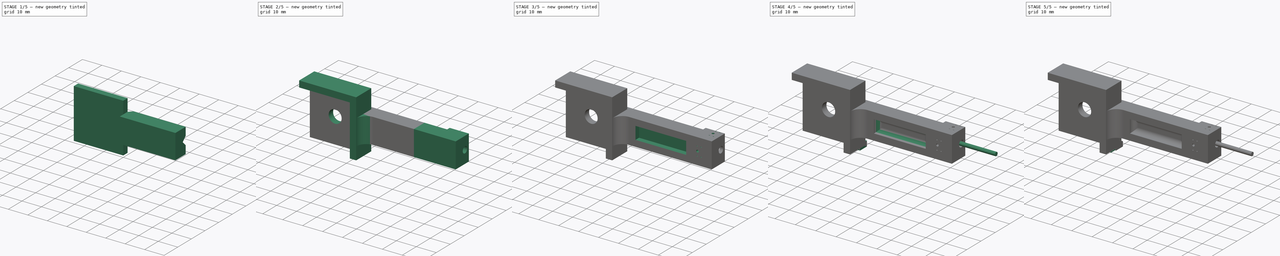
[diagram: build sequence overview — one tinted view per stage of 5, left to right]
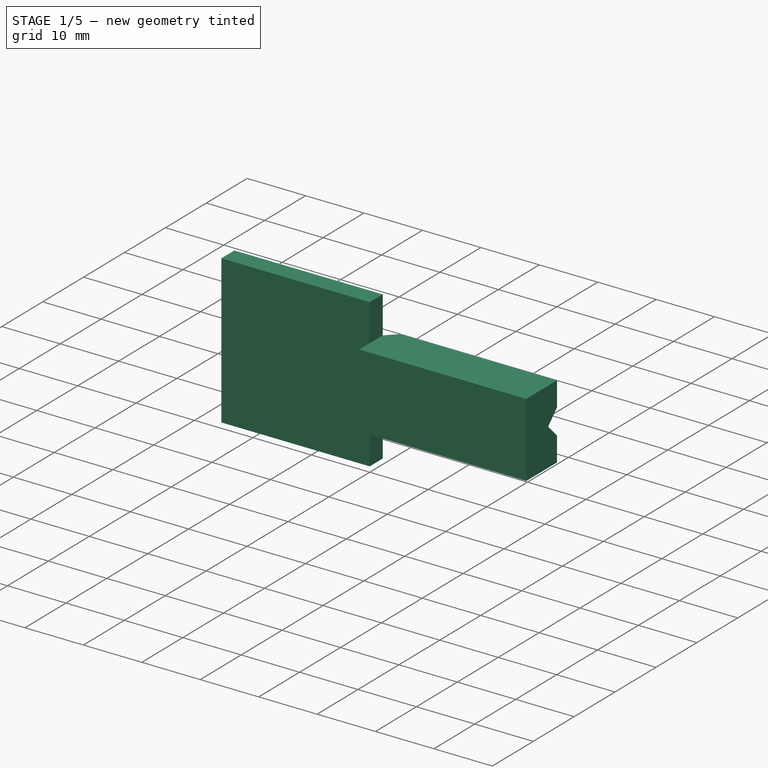
[diagram: stage 1 of 5 — iso view after this stage's code; geometry added in this stage tinted green]
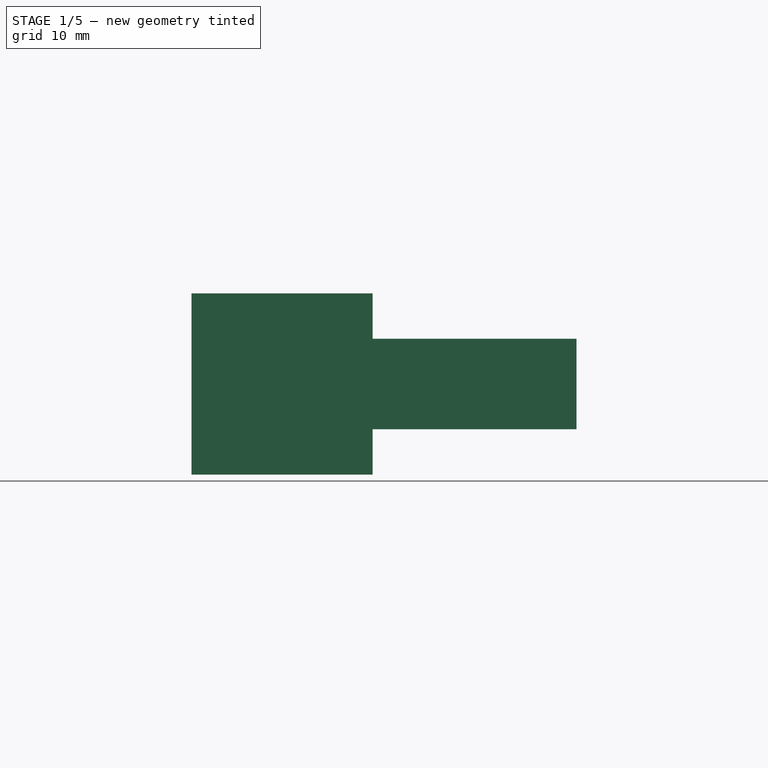
[diagram: stage 1 of 5 — front view after this stage's code; geometry added in this stage tinted green]
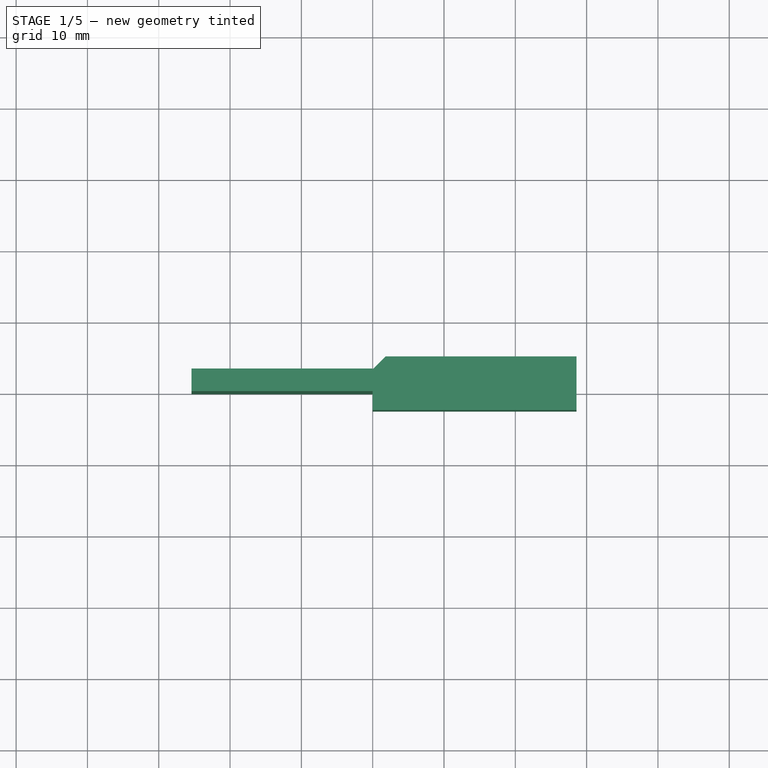
[diagram: stage 1 of 5 — top view after this stage's code; geometry added in this stage tinted green]
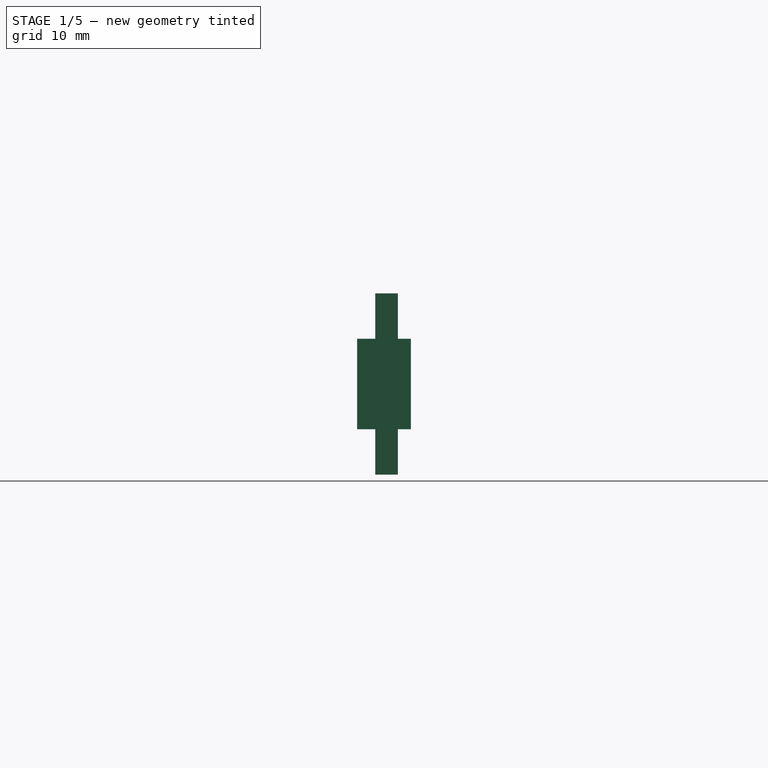
[diagram: stage 1 of 5 — right view after this stage's code; geometry added in this stage tinted green]
FCSTD DOCUMENT  (FreeCAD 0.18R16110 (Git))
Label: Lick spout holder with photointerrupt
License: All rights reserved
LicenseURL: http://en.wikipedia.org/wiki/All_rights_reserved
objects: Sketcher::SketchObject×20, PartDesign::Pad×9, PartDesign::Pocket×9, PartDesign::Chamfer×5, PartDesign::Body×3, PartDesign::Fillet×2, Part::Feature×2, Part::Part2DObjectPython×1, Spreadsheet::Sheet×1, PartDesign::SubtractiveLoft×1
note: 71 computed .brp shape members not serialized (recipe doc carries the construction recipe); baked Part::Feature solids carry a one-line shape summary decoded from their .brp

FEATURE [Sketcher::SketchObject] Sketch  label="Mounting platform"
  MapMode = 5
  Support = -> [XY_Plane]
  sketch-geometry (4):
    g0: LineSegment StartX=-25.4 StartY=3.175 StartZ=0 EndX=0 EndY=3.175 EndZ=0
    g1: LineSegment StartX=0 StartY=3.175 StartZ=0 EndX=0 EndY=0 EndZ=0
    g2: LineSegment StartX=0 StartY=0 StartZ=0 EndX=-25.4 EndY=0 EndZ=0
    g3: LineSegment StartX=-25.4 StartY=0 StartZ=0 EndX=-25.4 EndY=3.175 EndZ=0
  constraints (11):
    c: Coincident(g0,g1)
    c: Coincident(g1,g2)
    c: Coincident(g2,g3)
    c: Coincident(g3,g0)
    c: Horizontal(g0)
    c: Horizontal(g2)
    c: Vertical(g1)
    c: Vertical(g3)
    c: DistanceX(g2,g2) = 25.4
    c: DistanceY(g1,g1) = 3.175
    c: Coincident(g-1,g1)
FEATURE [PartDesign::Pad] Pad
  Length = 25.4
  Length2 = 99.9998
  Profile = -> Sketch
  Type = 0
FEATURE [Sketcher::SketchObject] Sketch001  label="Spout support platform"
  MapMode = 5
  Placement = pos=(0,3.175,0) rot=(0,0.707107,0.707107;3.14159rad)
  Support = -> [Pad]
  expr: Constraints[11] = 1.5in - 0.375in
  expr: Constraints[8] = (1in - 0.5in) / 2
  sketch-geometry (4):
    g0: LineSegment StartX=-28.575 StartY=19.05 StartZ=0 EndX=0 EndY=19.05 EndZ=0
    g1: LineSegment StartX=0 StartY=19.05 StartZ=0 EndX=0 EndY=6.35 EndZ=0
    g2: LineSegment StartX=0 StartY=6.35 StartZ=0 EndX=-28.575 EndY=6.35 EndZ=0
    g3: LineSegment StartX=-28.575 StartY=6.35 StartZ=0 EndX=-28.575 EndY=19.05 EndZ=0
  constraints (12):
    c: Coincident(g0,g1)
    c: Coincident(g1,g2)
    c: Coincident(g2,g3)
    c: Coincident(g3,g0)
    c: Horizontal(g0)
    c: Horizontal(g2)
    c: Vertical(g1)
    c: Vertical(g3)
    c: DistanceY(g-1,g1) = 6.35
    c: DistanceY(g1,g1) = 12.7
    c: DistanceX(g1,g-1) = 0
    c: DistanceX(g2,g2) = 28.575
FEATURE [PartDesign::Pad] Pad001
  BaseFeature = -> Pad
  Length = 1.81
  Length2 = 5.715
  Profile = -> Sketch001
  Type = 4
  expr: Length = 1.81mm
FEATURE [Sketcher::SketchObject] Sketch002  label="Spout groove"
  MapMode = 5
  Placement = pos=(28.575,0,0) rot=(0.57735,0.57735,0.57735;2.0944rad)
  Support = -> [Pad001]
  expr: Constraints[7] = 0.125" + 1.81mm / 2
  expr: Constraints[3] = 1.81mm / 2
  sketch-geometry (4):
    g0: LineSegment StartX=9.15014 StartY=19.05 StartZ=0 EndX=2.80014 EndY=12.7 EndZ=0
    g1: LineSegment StartX=2.80014 StartY=12.7 StartZ=0 EndX=9.15014 EndY=6.35 EndZ=0
    g2: LineSegment StartX=9.15014 StartY=6.35 StartZ=0 EndX=9.15014 EndY=19.05 EndZ=0
    g3: Circle [constr] CenterX=4.08 CenterY=12.7 CenterZ=0 NormalX=0 NormalY=0 NormalZ=1 AngleXU=0 Radius=0.905
  constraints (12):
    c: Coincident(g0,g2)
    c: Coincident(g0,g1)
    c: Coincident(g1,g2)
    c: Radius(g3) = 0.905
    c: Tangent(g1,g3)
    c: Tangent(g3,g0)
    c: DistanceX(g1,g0) = 0
    c: DistanceX(g-1,g3) = 4.08
    c: DistanceY(g-1,g0) = 12.7
    c: Equal(g0,g1)
    c: Angle(g1,g0) = 1.5708
    c: DistanceX(g0,g1) = 6.35
FEATURE [PartDesign::Pocket] Pocket
  BaseFeature = -> Pad001
  Length = 9.525
  Length2 = 99.9998
  Profile = -> Sketch002
  Type = 0
  expr: Length = 3in / 8
FEATURE [Sketcher::SketchObject] Sketch003  label="Tube groove"
  MapMode = 5
  Placement = pos=(19.05,0,0) rot=(0.57735,0.57735,0.57735;2.0944rad)
  Support = -> [Pocket]
  expr: Constraints[12] = 1.81mm / 2
  expr: Constraints[4] = 0.125" + 1.81mm / 2
  expr: Constraints[2] = 0.16" / 2
  sketch-geometry (4):
    g0: ArcOfCircle CenterX=4.08 CenterY=12.7 CenterZ=0 NormalX=0 NormalY=0 NormalZ=1 AngleXU=0 Radius=2.032 StartAngle=1.5708 EndAngle=4.71239
    g1: LineSegment StartX=4.08 StartY=14.732 StartZ=0 EndX=4.985 EndY=14.732 EndZ=0
    g2: LineSegment StartX=4.985 StartY=14.732 StartZ=0 EndX=4.985 EndY=10.668 EndZ=0
    g3: LineSegment StartX=4.985 StartY=10.668 StartZ=0 EndX=4.08 EndY=10.668 EndZ=0
  constraints (13):
    c: DistanceX(g0,g0) = 0
    c: DistanceX(g0,g0) = 0
    c: Radius(g0) = 2.032
    c: DistanceY(g-1,g0) = 12.7
    c: DistanceX(g-1,g0) = 4.08
    c: Coincident(g0,g1)
    c: Coincident(g1,g2)
    c: Coincident(g2,g3)
    c: Coincident(g0,g3)
    c: Horizontal(g3)
    c: Horizontal(g1)
    c: Vertical(g2)
    c: Distance(g1) = 0.905
FEATURE [PartDesign::Pocket] Pocket001
  BaseFeature = -> Pocket
  Length = 12.7
  Length2 = 99.9998
  Profile = -> Sketch003
  Type = 0
FEATURE [PartDesign::Chamfer] Chamfer
  Base = -> Pocket001 [Edge14]
  BaseFeature = -> Pocket001
  Size = 1.8034
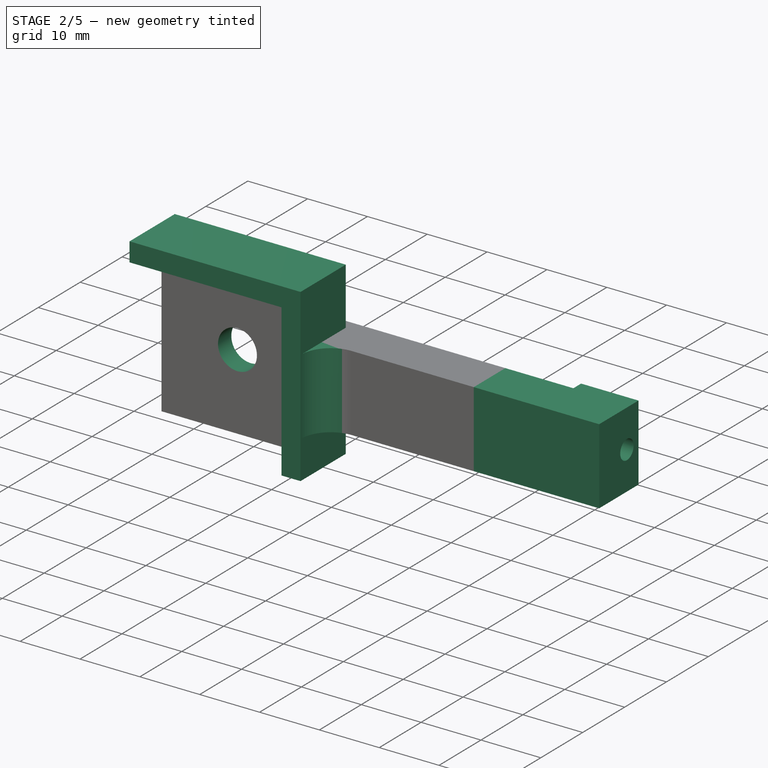
[diagram: stage 2 of 5 — iso view after this stage's code; geometry added in this stage tinted green]
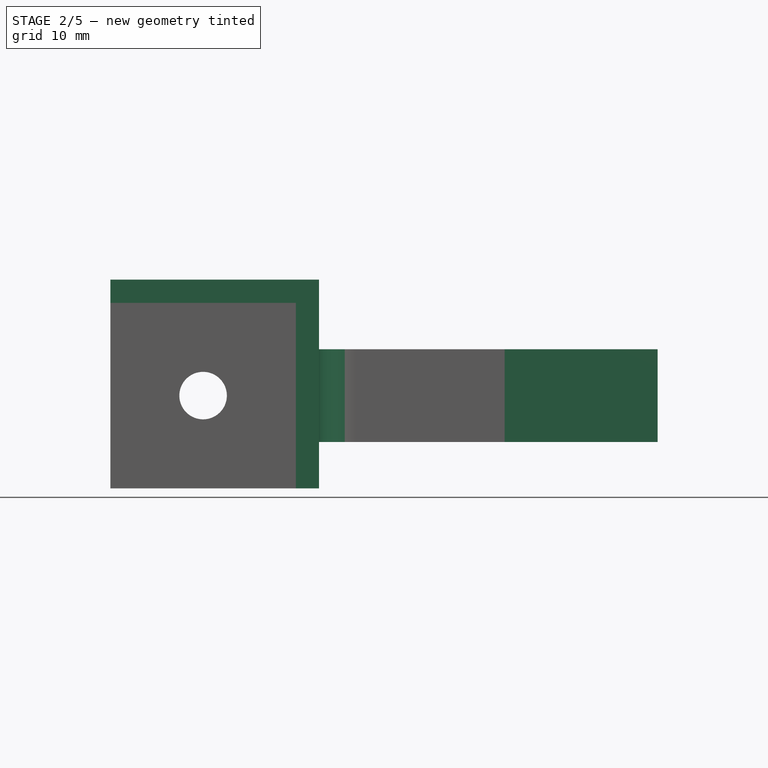
[diagram: stage 2 of 5 — front view after this stage's code; geometry added in this stage tinted green]
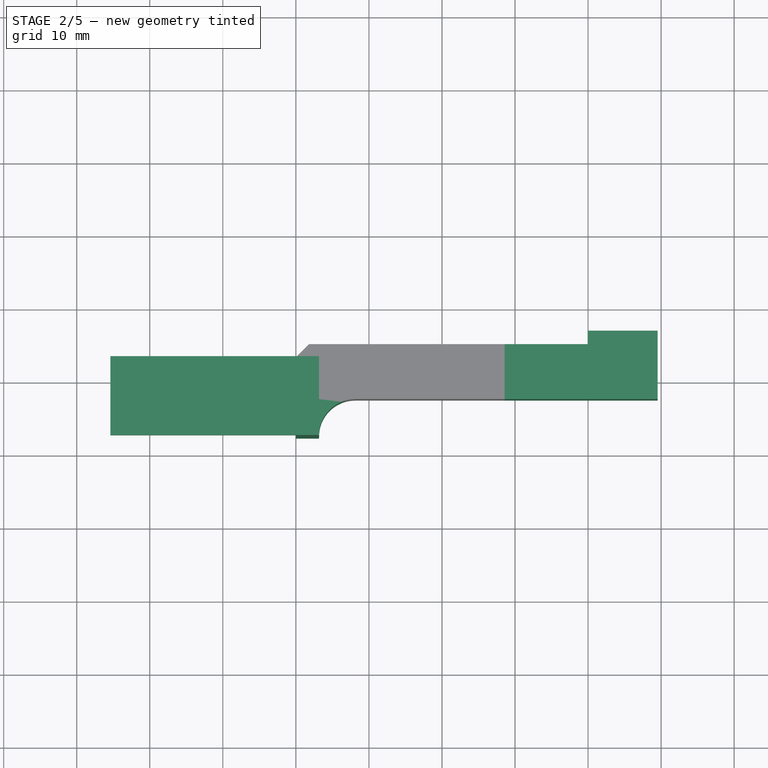
[diagram: stage 2 of 5 — top view after this stage's code; geometry added in this stage tinted green]
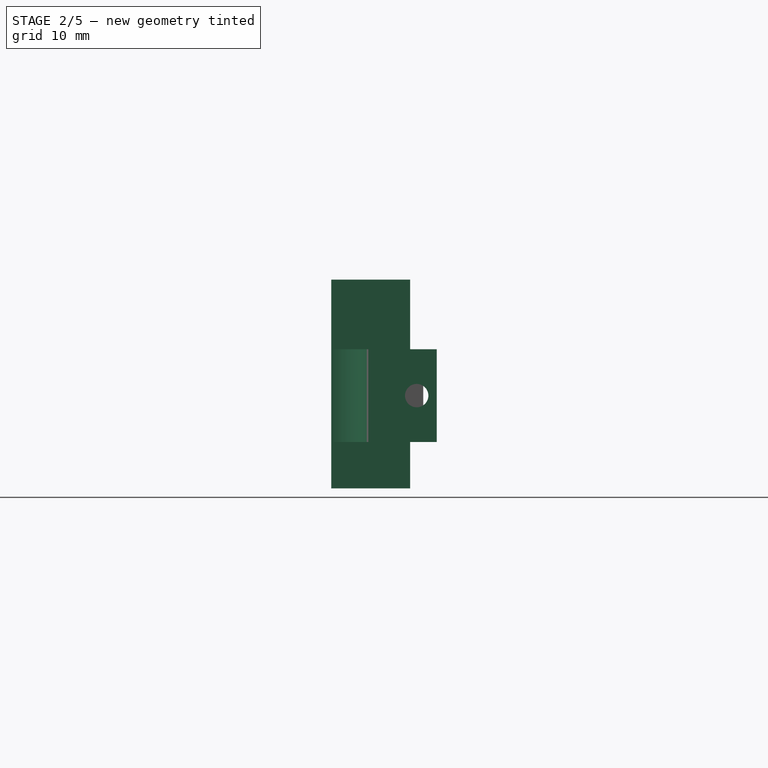
[diagram: stage 2 of 5 — right view after this stage's code; geometry added in this stage tinted green]
FEATURE [Sketcher::SketchObject] Sketch004  label="Mounting hole"
  MapMode = 5
  Placement = pos=(0,3.175,0) rot=(0,0.707107,0.707107;3.14159rad)
  Support = -> [Chamfer]
  expr: Constraints[2] = 0.25in / 2 + 0.003in
  sketch-geometry (1):
    g0: Circle CenterX=12.7 CenterY=12.7 CenterZ=0 NormalX=0 NormalY=0 NormalZ=1 AngleXU=0 Radius=3.2512
  constraints (3):
    c: DistanceX(g-1,g0) = 12.7
    c: DistanceY(g-1,g0) = 12.7
    c: Radius(g0) = 3.2512
FEATURE [PartDesign::Pocket] Pocket002
  BaseFeature = -> Chamfer
  Length = 5.00126
  Length2 = 99.9998
  Profile = -> Sketch004
  Type = 1
FEATURE [Sketcher::SketchObject] Sketch006  label="Orienting lip"
  MapMode = 5
  Placement = pos=(0,3.175,0) rot=(0,0.707107,0.707107;3.14159rad)
  Support = -> [Pocket002]
  sketch-geometry (6):
    g0: LineSegment StartX=0 StartY=0 StartZ=0 EndX=-3.175 EndY=0 EndZ=0
    g1: LineSegment StartX=-3.175 StartY=0 StartZ=0 EndX=-3.175 EndY=28.575 EndZ=0
    g2: LineSegment StartX=-3.175 StartY=28.575 StartZ=0 EndX=25.4 EndY=28.575 EndZ=0
    g3: LineSegment StartX=25.4 StartY=28.575 StartZ=0 EndX=25.4 EndY=25.4 EndZ=0
    g4: LineSegment StartX=25.4 StartY=25.4 StartZ=0 EndX=0 EndY=25.4 EndZ=0
    g5: LineSegment StartX=0 StartY=25.4 StartZ=0 EndX=0 EndY=0 EndZ=0
  constraints (17):
    c: Coincident(g0,g1)
    c: Coincident(g1,g2)
    c: Coincident(g2,g3)
    c: Coincident(g3,g4)
    c: Coincident(g4,g5)
    c: Coincident(g0,g5)
    c: Coincident(g0,g-1)
    c: Horizontal(g0)
    c: Horizontal(g4)
    c: Horizontal(g2)
    c: Vertical(g1)
    c: Vertical(g5)
    c: Vertical(g3)
    c: DistanceY(g4) = 25.4
    c: DistanceX(g3) = 25.4
    c: DistanceX(g1,g4) = 3.175
    c: DistanceY(g4,g1) = 3.175
FEATURE [PartDesign::Pad] Pad002
  BaseFeature = -> Pocket002
  Length = 10.795
  Length2 = 99.9998
  Profile = -> Sketch006
  Reversed = true
  Type = 0
FEATURE [PartDesign::Fillet] Fillet
  Base = -> Pad002 [Edge26]
  BaseFeature = -> Pad002
  Radius = 4.953
FEATURE [PartDesign::Body] Body002  label="Spout001"
  Group = -> [Sketch011,Pad007]
  Origin = -> Origin002
  Tip = -> Pad007
FEATURE [Part::Feature] Body001001  label="Photointerrupt001"
  Placement = pos=(43.1505,-0.885161,12.6997) rot=(0,1,0;4.71239rad)
  shape: bbox 2.6 x 7.9 x 5.5 mm, 45 faces (baked)
  expr: Placement.Base.x = 1.5354" + 0.25" - 1.463thou - 0.125in + 0.1649in - 0.125" + ss.piDelta
  expr: Placement.Base.y = -22.7734thou - 5.603thou - 0.07199999999999999" / 2 + 0.75mm
  expr: Placement.Base.z = 0.5118" - 11.8113thou
FEATURE [Part::Feature] Body001002  label="Photointerrupt002"
  Placement = pos=(46.3245,4.0805,7.7356) rot=(0.57735,-0.57735,-0.57735;2.0944rad)
  shape: bbox 2.6 x 5.5 x 7.9 mm, 45 faces (baked)
  expr: Placement.Base.z = 0.3543" - 37.7043thou - 5.5721thou - 0.07199999999999999" / 2 + 0.75mm
  expr: Placement.Base.x = 1.8238" + ss.piDelta
  expr: Placement.Base.y = 0.1969" - 36.2505thou
FEATURE [Sketcher::SketchObject] Sketch012
  ExternalGeometry = -> [Fillet]
  MapMode = 5
  Placement = pos=(28.575,0,0) rot=(0.57735,0.57735,0.57735;2.0944rad)
  Support = -> [Fillet]
  expr: Constraints[30] = 5.5mm + 2 * ss.piTol
  expr: Constraints[32] = 4.8mm - 0.75mm + 0.07199999999999999" / 2 + ss.piTol
  expr: Constraints[29] = 4.8mm - 0.75mm + 0.07199999999999999" / 2 - 5.5mm / 2
  expr: Constraints[17] = 0.2246" - (4.8mm - 0.75mm) - ss.piTol
  expr: Constraints[15] = 0.225" + 1.81mm
  sketch-geometry (13):
    g0: LineSegment [constr] StartX=-25.4 StartY=12.7 StartZ=0 EndX=25.4 EndY=12.7 EndZ=0
    g1: LineSegment StartX=4.985 StartY=19.05 StartZ=0 EndX=-2.54 EndY=19.05 EndZ=0
    g2: LineSegment StartX=-2.54 StartY=19.05 StartZ=0 EndX=-2.54 EndY=6.35 EndZ=0
    g3: LineSegment StartX=-2.54 StartY=6.35 StartZ=0 EndX=4.985 EndY=6.35 EndZ=0
    g4: LineSegment StartX=4.985 StartY=6.35 StartZ=0 EndX=4.985 EndY=7.5106 EndZ=0
    g5: LineSegment StartX=4.985 StartY=7.5106 StartZ=0 EndX=1.10424 EndY=7.5106 EndZ=0
    g6: LineSegment StartX=-1.11016 StartY=9.725 StartZ=0 EndX=-1.11016 EndY=15.675 EndZ=0
    g7: LineSegment StartX=1.10424 StartY=17.8894 StartZ=0 EndX=4.985 EndY=17.8894 EndZ=0
    g8: LineSegment StartX=4.985 StartY=17.8894 StartZ=0 EndX=4.985 EndY=19.05 EndZ=0
    g9: LineSegment StartX=-1.11016 StartY=15.675 StartZ=0 EndX=1.10424 EndY=15.675 EndZ=0
    g10: LineSegment StartX=1.10424 StartY=15.675 StartZ=0 EndX=1.10424 EndY=17.8894 EndZ=0
    g11: LineSegment StartX=-1.11016 StartY=9.725 StartZ=0 EndX=1.10424 EndY=9.725 EndZ=0
    g12: LineSegment StartX=1.10424 StartY=9.725 StartZ=0 EndX=1.10424 EndY=7.5106 EndZ=0
  constraints (33):
    c: Horizontal(g0)
    c: DistanceX(g0) = -25.4
    c: DistanceX(g0) = 25.4
    c: DistanceY(g0) = 12.7
    c: Coincident(g2,g3)
    c: Coincident(g3,g4)
    c: Coincident(g4,g5)
    c: Coincident(g7,g8)
    c: Coincident(g1,g8)
    c: Symmetric(g2,g1,g0)
    c: Symmetric(g7,g4,g0)
    c: Symmetric(g1,g3,g0)
    c: Vertical(g8)
    c: Horizontal(g1)
    c: Horizontal(g7)
    c: DistanceX(g1,g1) = 7.525
    c: Coincident(g1,g-3)
    c: DistanceX(g1,g6) = 1.42984
    c: Coincident(g9,g10)
    c: Coincident(g11,g12)
    c: Coincident(g6,g11)
    c: Coincident(g5,g12)
    c: Coincident(g6,g9)
    c: Coincident(g7,g10)
    c: Symmetric(g11,g9,g0)
    c: Symmetric(g6,g6,g0)
    c: Symmetric(g7,g5,g0)
    c: Vertical(g10)
    c: Horizontal(g9)
    c: DistanceX(g9,g9) = 2.2144
    c: DistanceY(g6,g6) = 5.95
    c: Coincident(g1,g2)
    c: DistanceY(g4,g0) = 5.1894
FEATURE [Part::Part2DObjectPython] Line  label="Spout axis"  # Draft 2D object (typed FeaturePython)
  ChamferSize = 0
  Closed = false
  End = (13.335,4.07924,12.7)
  FilletRadius = 0
  Length = 53.34
  MakeFace = true
  Placement = pos=(66.675,4.07924,12.7) rot=(0.57735,0.57735,0.57735;2.0944rad)
  Points = (2) [(0,0,0),(2.66454e-14,-2.66454e-14,-53.34)]
  Start = (66.675,4.07924,12.7)
  Subdivisions = 0
FEATURE [Spreadsheet::Sheet] Spreadsheet  label="ss"
  cells = A1=PI fit tolerance:; B1(piTol)==0.225mm; A2=Spout hole; B2(shole)==1.75 * 0.07199999999999999" / 2; A3=PI position adjustment; B3(piDelta)==0mm; A4=Alignment hole radius; B4(alignHole)==1mm / 2 + ss.piTol / 2
FEATURE [Sketcher::SketchObject] Sketch013  label="PI support extension"
  ExternalGeometry = -> [Fillet]
  MapMode = 5
  Placement = pos=(28.575,0,0) rot=(0.57735,0.57735,0.57735;2.0944rad)
  Support = -> [Fillet]
  expr: Constraints[18] = 5.5mm / 2
  expr: Constraints[2] = 0.125" + 1.81mm / 2
  expr: Constraints[1] = ss.shole
  sketch-geometry (7):
    g0: Circle CenterX=4.08 CenterY=12.7 CenterZ=0 NormalX=0 NormalY=0 NormalZ=1 AngleXU=0 Radius=1.6002
    g1: LineSegment StartX=-2.54 StartY=19.05 StartZ=0 EndX=6.83 EndY=19.05 EndZ=0
    g2: LineSegment StartX=6.83 StartY=19.05 StartZ=0 EndX=6.83 EndY=6.35 EndZ=0
    g3: LineSegment StartX=6.83 StartY=6.35 StartZ=0 EndX=-2.54 EndY=6.35 EndZ=0
    g4: LineSegment StartX=-2.54 StartY=6.35 StartZ=0 EndX=-2.54 EndY=19.05 EndZ=0
    g5: LineSegment [constr] StartX=-21.32 StartY=12.7 StartZ=0 EndX=29.48 EndY=12.7 EndZ=0
    g6: LineSegment [constr] StartX=4.08 StartY=38.1 StartZ=0 EndX=4.08 EndY=-12.7 EndZ=0
  constraints (20):
    c: DistanceY(g0) = 12.7
    c: Radius(g0) = 1.6002
    c: DistanceX(g0) = 4.08
    c: Coincident(g1,g2)
    c: Coincident(g2,g3)
    c: Coincident(g3,g4)
    c: Coincident(g4,g1)
    c: Horizontal(g1)
    c: Horizontal(g3)
    c: Vertical(g2)
    c: PointOnObject(g0,g6)
    c: PointOnObject(g0,g5)
    c: Horizontal(g5)
    c: Symmetric(g6,g6,g5)
    c: Symmetric(g5,g5,g6)
    c: Distance(g6) = 50.8
    c: Symmetric(g1,g3,g5)
    c: Coincident(g3,g-3)
    c: DistanceX(g0,g1) = 2.75
    c: Equal(g6,g5)
FEATURE [PartDesign::Pad] Pad008
  BaseFeature = -> Fillet
  Length = 20.955
  Length2 = 99.9998
  Profile = -> Sketch013
  Type = 0
  expr: Length = 0.825" + ss.piDelta
FEATURE [PartDesign::Pocket] Pocket003
  BaseFeature = -> Pad008
  Length = 11.3711
  Length2 = 99.9998
  Profile = -> Pad008 [Face13]
  Type = 0
  expr: Length = 0.25" + 0.2727" - 75.0189thou + ss.piDelta
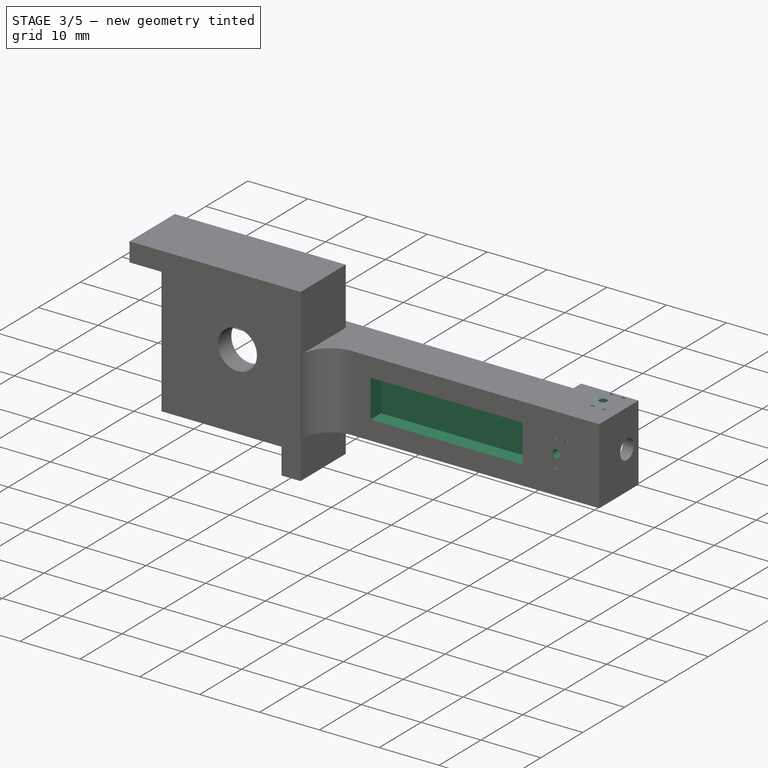
[diagram: stage 3 of 5 — iso view after this stage's code; geometry added in this stage tinted green]
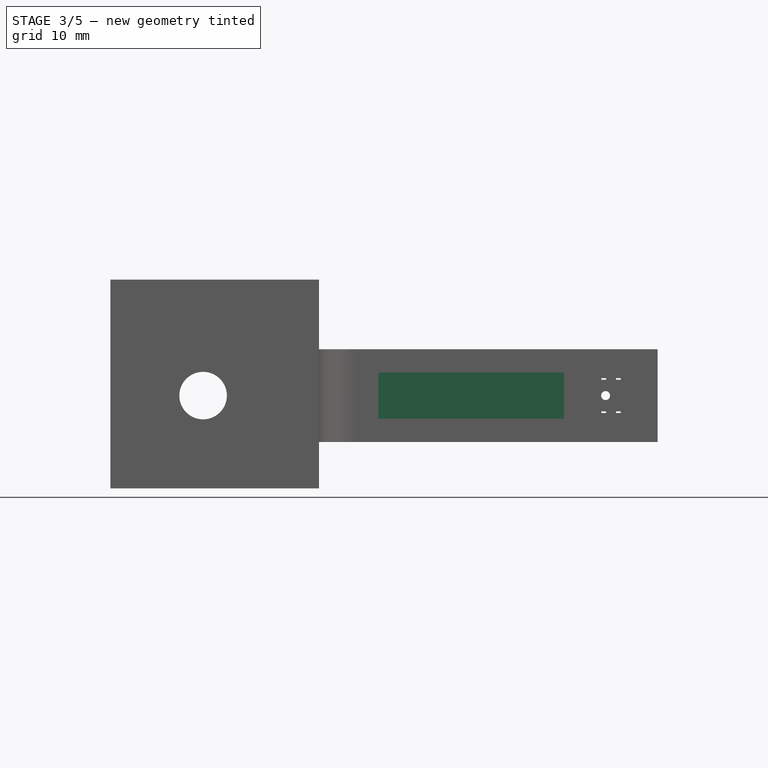
[diagram: stage 3 of 5 — front view after this stage's code; geometry added in this stage tinted green]
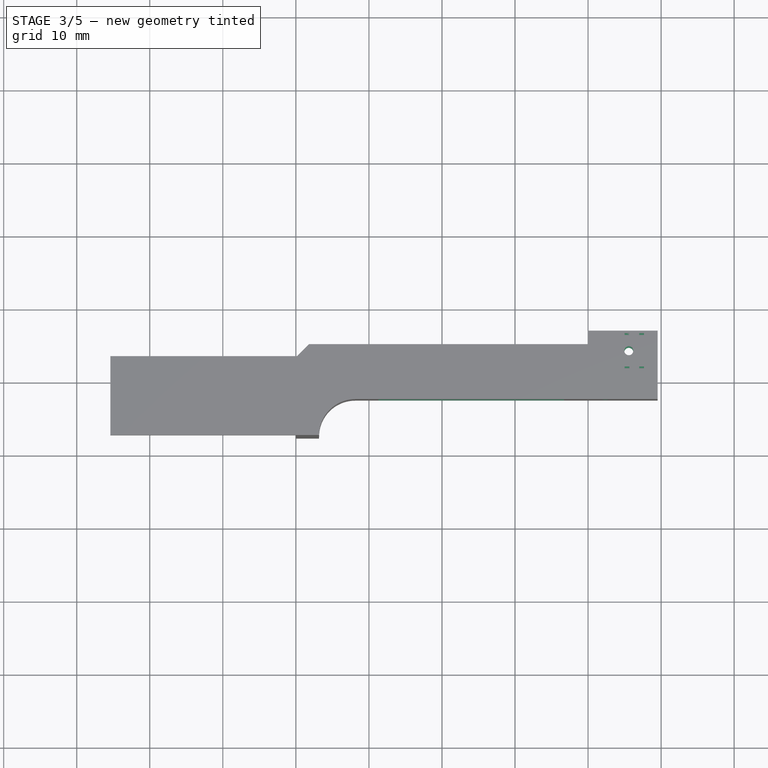
[diagram: stage 3 of 5 — top view after this stage's code; geometry added in this stage tinted green]
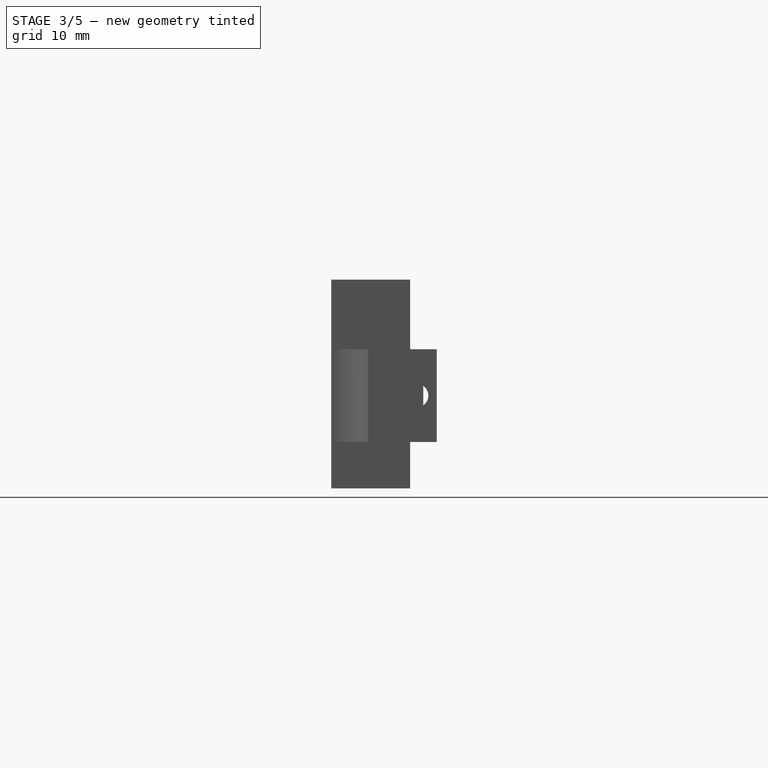
[diagram: stage 3 of 5 — right view after this stage's code; geometry added in this stage tinted green]
FEATURE [Sketcher::SketchObject] Sketch014  label="Sideways PI slot"
  MapMode = 5
  Placement = pos=(0,6.83,0) rot=(0,0.707107,0.707107;3.14159rad)
  Support = -> [Pocket003]
  expr: Constraints[14] = 2.6mm + ss.piTol
  expr: Constraints[13] = -1.875in - ss.piTol / 2 - ss.piDelta
  expr: Constraints[12] = 2 * (4.8mm - 0.75mm + 0.07199999999999999in / 2) + ss.piTol
  sketch-geometry (5):
    g0: LineSegment StartX=-47.7375 StartY=17.7769 StartZ=0 EndX=-44.9125 EndY=17.7769 EndZ=0
    g1: LineSegment StartX=-44.9125 StartY=17.7769 StartZ=0 EndX=-44.9125 EndY=7.6231 EndZ=0
    g2: LineSegment StartX=-44.9125 StartY=7.6231 StartZ=0 EndX=-47.7375 EndY=7.6231 EndZ=0
    g3: LineSegment StartX=-47.7375 StartY=7.6231 StartZ=0 EndX=-47.7375 EndY=17.7769 EndZ=0
    g4: LineSegment [constr] StartX=-76.2 StartY=12.7 StartZ=0 EndX=0 EndY=12.7 EndZ=0
  constraints (15):
    c: Coincident(g0,g1)
    c: Coincident(g1,g2)
    c: Coincident(g2,g3)
    c: Coincident(g3,g0)
    c: Horizontal(g0)
    c: Horizontal(g2)
    c: Vertical(g1)
    c: Horizontal(g4)
    c: DistanceY(g4) = 12.7
    c: DistanceX(g4) = 0
    c: DistanceX(g4) = -76.2
    c: Symmetric(g0,g2,g4)
    c: DistanceY(g1,g1) = 10.1538
    c: DistanceX(g2) = -47.7375
    c: DistanceX(g2,g2) = 2.825
FEATURE [PartDesign::Pocket] Pocket004
  BaseFeature = -> Pocket003
  Length = 5.6125
  Length2 = 99.9998
  Profile = -> Sketch014
  Type = 0
  expr: Length = 5.5mm + ss.piTol / 2
FEATURE [Sketcher::SketchObject] Sketch015  label="Vertical PI slot"
  MapMode = 5
  Placement = pos=(0,6.83,0) rot=(0,0.707107,0.707107;3.14159rad)
  Support = -> [Pocket004]
  expr: Constraints[14] = -1.875" + 0.125" - ss.piTol / 2 - ss.piDelta
  expr: Constraints[13] = 2.6mm + ss.piTol
  expr: Constraints[12] = 5.5mm + ss.piTol
  sketch-geometry (5):
    g0: LineSegment [constr] StartX=-76.2 StartY=12.7 StartZ=0 EndX=0 EndY=12.7 EndZ=0
    g1: LineSegment StartX=-44.5625 StartY=15.5625 StartZ=0 EndX=-41.7375 EndY=15.5625 EndZ=0
    g2: LineSegment StartX=-41.7375 StartY=15.5625 StartZ=0 EndX=-41.7375 EndY=9.8375 EndZ=0
    g3: LineSegment StartX=-41.7375 StartY=9.8375 StartZ=0 EndX=-44.5625 EndY=9.8375 EndZ=0
    g4: LineSegment StartX=-44.5625 StartY=9.8375 StartZ=0 EndX=-44.5625 EndY=15.5625 EndZ=0
  constraints (15):
    c: DistanceX(g0) = 0
    c: Horizontal(g0)
    c: DistanceY(g0) = 12.7
    c: DistanceX(g0) = -76.2
    c: Coincident(g1,g2)
    c: Coincident(g2,g3)
    c: Coincident(g3,g4)
    c: Coincident(g4,g1)
    c: Horizontal(g1)
    c: Horizontal(g3)
    c: Vertical(g2)
    c: Symmetric(g1,g3,g0)
    c: DistanceY(g4,g4) = 5.725
    c: DistanceX(g3,g3) = 2.825
    c: DistanceX(g3) = -44.5625
FEATURE [PartDesign::Pocket] Pocket005
  BaseFeature = -> Pocket004
  Length = 7.8269
  Length2 = 99.9998
  Profile = -> Sketch015
  Type = 0
  expr: Length = 5.5mm / 2 + 4.8mm - 0.75mm + 0.07199999999999999" / 2 + ss.piTol / 2
FEATURE [Sketcher::SketchObject] Sketch016  label="Vertical PI lead and alignment holes"
  MapMode = 5
  Placement = pos=(0,-0.9969,3e-16) rot=(0,0.707107,0.707107;3.14159rad)
  Support = -> [Pocket005]
  expr: Constraints[73] = 0.75mm
  expr: Constraints[72] = 4.55mm / 2
  expr: Constraints[51] = ss.alignHole
  expr: Constraints[50] = 5.5mm
  expr: Constraints[68] = 1mm
  expr: Constraints[62] = 0.15mm * 1.5
  expr: Constraints[39] = -1.875in + 0.125" + 2.6mm / 2 - ss.piDelta
  expr: Constraints[49] = 2.6mm
  expr: Constraints[61] = 0.65mm
  sketch-geometry (26):
    g0: LineSegment StartX=-44.475 StartY=15.0875 StartZ=0 EndX=-43.825 EndY=15.0875 EndZ=0
    g1: LineSegment StartX=-43.825 StartY=15.0875 StartZ=0 EndX=-43.825 EndY=14.8625 EndZ=0
    g2: LineSegment StartX=-43.825 StartY=14.8625 StartZ=0 EndX=-44.475 EndY=14.8625 EndZ=0
    g3: LineSegment StartX=-44.475 StartY=14.8625 StartZ=0 EndX=-44.475 EndY=15.0875 EndZ=0
    g4: LineSegment StartX=-44.475 StartY=10.5375 StartZ=0 EndX=-43.825 EndY=10.5375 EndZ=0
    g5: LineSegment StartX=-43.825 StartY=10.5375 StartZ=0 EndX=-43.825 EndY=10.3125 EndZ=0
    g6: LineSegment StartX=-43.825 StartY=10.3125 StartZ=0 EndX=-44.475 EndY=10.3125 EndZ=0
    g7: LineSegment StartX=-44.475 StartY=10.3125 StartZ=0 EndX=-44.475 EndY=10.5375 EndZ=0
    g8: LineSegment StartX=-42.475 StartY=15.0875 StartZ=0 EndX=-41.825 EndY=15.0875 EndZ=0
    g9: LineSegment StartX=-41.825 StartY=15.0875 StartZ=0 EndX=-41.825 EndY=14.8625 EndZ=0
    g10: LineSegment StartX=-41.825 StartY=14.8625 StartZ=0 EndX=-42.475 EndY=14.8625 EndZ=0
    g11: LineSegment StartX=-42.475 StartY=14.8625 StartZ=0 EndX=-42.475 EndY=15.0875 EndZ=0
    g12: LineSegment StartX=-42.475 StartY=10.5375 StartZ=0 EndX=-41.825 EndY=10.5375 EndZ=0
    g13: LineSegment StartX=-41.825 StartY=10.5375 StartZ=0 EndX=-41.825 EndY=10.3125 EndZ=0
    g14: LineSegment StartX=-41.825 StartY=10.3125 StartZ=0 EndX=-42.475 EndY=10.3125 EndZ=0
    g15: LineSegment StartX=-42.475 StartY=10.3125 StartZ=0 EndX=-42.475 EndY=10.5375 EndZ=0
    g16: Circle CenterX=-42.4 CenterY=12.7 CenterZ=0 NormalX=0 NormalY=0 NormalZ=1 AngleXU=0 Radius=0.6125
    g17: LineSegment [constr] StartX=-76.2 StartY=12.7 StartZ=0 EndX=0 EndY=12.7 EndZ=0
    g18: LineSegment [constr] StartX=-43.15 StartY=25.4 StartZ=0 EndX=-43.15 EndY=0 EndZ=0
    g19: LineSegment [constr] StartX=-44.45 StartY=15.45 StartZ=0 EndX=-41.85 EndY=15.45 EndZ=0
    g20: LineSegment [constr] StartX=-41.85 StartY=15.45 StartZ=0 EndX=-41.85 EndY=9.95 EndZ=0
    g21: LineSegment [constr] StartX=-41.85 StartY=9.95 StartZ=0 EndX=-44.45 EndY=9.95 EndZ=0
    g22: LineSegment [constr] StartX=-44.45 StartY=9.95 StartZ=0 EndX=-44.45 EndY=15.45 EndZ=0
    g23: LineSegment [constr] StartX=-44.15 StartY=14.8625 StartZ=0 EndX=-44.15 EndY=15.0875 EndZ=0
    g24: GeomPoint X=-43.15 Y=12.7 Z=0
    g25: LineSegment [constr] StartX=-44.475 StartY=14.975 StartZ=0 EndX=-43.825 EndY=14.975 EndZ=0
  constraints (74):
    c: Coincident(g0,g1)
    c: Coincident(g1,g2)
    c: Coincident(g2,g3)
    c: Coincident(g3,g0)
    c: Horizontal(g0)
    c: Horizontal(g2)
    c: Vertical(g1)
    c: Vertical(g3)
    c: Coincident(g4,g5)
    c: Coincident(g5,g6)
    c: Coincident(g6,g7)
    c: Coincident(g7,g4)
    c: Horizontal(g4)
    c: Horizontal(g6)
    c: Vertical(g5)
    c: Vertical(g7)
    c: Coincident(g8,g9)
    c: Coincident(g9,g10)
    c: Coincident(g10,g11)
    c: Coincident(g11,g8)
    c: Horizontal(g8)
    c: Horizontal(g10)
    c: Vertical(g9)
    c: Vertical(g11)
    c: Coincident(g12,g13)
    c: Coincident(g13,g14)
    c: Coincident(g14,g15)
    c: Coincident(g15,g12)
    c: Horizontal(g12)
    c: Horizontal(g14)
    c: Vertical(g13)
    c: Vertical(g15)
    c: Horizontal(g17)
    c: DistanceX(g17) = 0
    c: DistanceY(g17) = 12.7
    c: DistanceX(g17) = -76.2
    c: PointOnObject(g16,g17)
    c: DistanceY(g18) = 0
    c: DistanceY(g18,g18) = 25.4
    c: DistanceX(g18) = -43.15
    c: Vertical(g18)
    c: Coincident(g19,g20)
    c: Coincident(g20,g21)
    c: Coincident(g21,g22)
    c: Coincident(g22,g19)
    c: Horizontal(g19)
    c: Vertical(g20)
    c: Symmetric(g20,g21,g18)
    c: Symmetric(g19,g21,g17)
    c: DistanceX(g19,g19) = 2.6
    c: DistanceY(g22,g22) = 5.5
    c: Radius(g16) = 0.6125
    c: Symmetric(g1,g10,g18)
    c: Symmetric(g1,g4,g17)
    c: Symmetric(g4,g12,g18)
    c: Equal(g7,g15)
    c: Equal(g15,g11)
    c: Equal(g11,g3)
    c: Equal(g0,g8)
    c: Equal(g8,g12)
    c: Equal(g12,g4)
    c: DistanceX(g6,g6) = 0.65
    c: DistanceY(g5,g5) = 0.225
    c: PointOnObject(g23,g0)
    c: PointOnObject(g23,g2)
    c: Symmetric(g0,g0,g23)
    c: PointOnObject(g24,g18)
    c: PointOnObject(g24,g17)
    c: DistanceX(g23,g24) = 1
    c: PointOnObject(g25,g1)
    c: PointOnObject(g25,g3)
    c: Symmetric(g0,g2,g25)
    c: DistanceY(g24,g25) = 2.275
    c: DistanceX(g24,g16) = 0.75
FEATURE [PartDesign::Pocket] Pocket006
  BaseFeature = -> Pocket005
  Length = 5.00126
  Length2 = 99.9998
  Profile = -> Sketch016
  Type = 1
FEATURE [Sketcher::SketchObject] Sketch017  label="Sideways PI lead and alignment holes"
  MapMode = 5
  Placement = pos=(0,1.7e-15,7.6231) rot=(0,0,1;0rad)
  Support = -> [Pocket006]
  expr: Constraints[37] = 1.875in - 0.125" - 2.6mm / 2 + 0.125" + ss.piDelta
  expr: Constraints[58] = 0.15mm * 1.5
  expr: Constraints[49] = ss.alignHole
  expr: Constraints[73] = 0.75mm
  expr: Constraints[47] = 2.6mm
  expr: Constraints[57] = 0.65mm
  expr: Constraints[68] = 4.55mm / 2
  expr: Constraints[48] = 5.5mm
  expr: Constraints[64] = 1mm
  sketch-geometry (26):
    g0: LineSegment StartX=45 StartY=6.46674 StartZ=0 EndX=45.65 EndY=6.46674 EndZ=0
    g1: LineSegment StartX=45.65 StartY=6.46674 StartZ=0 EndX=45.65 EndY=6.24174 EndZ=0
    g2: LineSegment StartX=45.65 StartY=6.24174 StartZ=0 EndX=45 EndY=6.24174 EndZ=0
    g3: LineSegment StartX=45 StartY=6.24174 StartZ=0 EndX=45 EndY=6.46674 EndZ=0
    g4: LineSegment StartX=45 StartY=1.91674 StartZ=0 EndX=45.65 EndY=1.91674 EndZ=0
    g5: LineSegment StartX=45.65 StartY=1.91674 StartZ=0 EndX=45.65 EndY=1.69174 EndZ=0
    g6: LineSegment StartX=45.65 StartY=1.69174 StartZ=0 EndX=45 EndY=1.69174 EndZ=0
    g7: LineSegment StartX=45 StartY=1.69174 StartZ=0 EndX=45 EndY=1.91674 EndZ=0
    g8: LineSegment StartX=47.65 StartY=6.46674 StartZ=0 EndX=47 EndY=6.46674 EndZ=0
    g9: LineSegment StartX=47 StartY=6.46674 StartZ=0 EndX=47 EndY=6.24174 EndZ=0
    g10: LineSegment StartX=47 StartY=6.24174 StartZ=0 EndX=47.65 EndY=6.24174 EndZ=0
    g11: LineSegment StartX=47.65 StartY=6.24174 StartZ=0 EndX=47.65 EndY=6.46674 EndZ=0
    g12: LineSegment StartX=47.65 StartY=1.91674 StartZ=0 EndX=47 EndY=1.91674 EndZ=0
    g13: LineSegment StartX=47 StartY=1.91674 StartZ=0 EndX=47 EndY=1.69174 EndZ=0
    g14: LineSegment StartX=47 StartY=1.69174 StartZ=0 EndX=47.65 EndY=1.69174 EndZ=0
    g15: LineSegment StartX=47.65 StartY=1.69174 StartZ=0 EndX=47.65 EndY=1.91674 EndZ=0
    g16: Circle CenterX=45.575 CenterY=4.07924 CenterZ=0 NormalX=0 NormalY=0 NormalZ=1 AngleXU=0 Radius=0.6125
    g17: LineSegment [constr] StartX=76.2 StartY=4.07924 StartZ=0 EndX=0 EndY=4.07924 EndZ=0
    g18: LineSegment [constr] StartX=46.325 StartY=25.4 StartZ=0 EndX=46.325 EndY=0 EndZ=0
    g19: LineSegment [constr] StartX=45.025 StartY=6.82924 StartZ=0 EndX=47.625 EndY=6.82924 EndZ=0
    g20: LineSegment [constr] StartX=47.625 StartY=6.82924 StartZ=0 EndX=47.625 EndY=1.32924 EndZ=0
    g21: LineSegment [constr] StartX=47.625 StartY=1.32924 StartZ=0 EndX=45.025 EndY=1.32924 EndZ=0
    g22: LineSegment [constr] StartX=45.025 StartY=1.32924 StartZ=0 EndX=45.025 EndY=6.82924 EndZ=0
    g23: LineSegment [constr] StartX=45.325 StartY=6.24174 StartZ=0 EndX=45.325 EndY=6.46674 EndZ=0
    g24: GeomPoint X=46.325 Y=4.07924 Z=0
    g25: LineSegment [constr] StartX=45 StartY=6.35424 StartZ=0 EndX=45.65 EndY=6.35424 EndZ=0
  constraints (74):
    c: Coincident(g0,g1)
    c: Coincident(g1,g2)
    c: Coincident(g2,g3)
    c: Coincident(g3,g0)
    c: Horizontal(g0)
    c: Horizontal(g2)
    c: Vertical(g1)
    c: Vertical(g3)
    c: Coincident(g4,g5)
    c: Coincident(g5,g6)
    c: Coincident(g6,g7)
    c: Coincident(g7,g4)
    c: Horizontal(g4)
    c: Horizontal(g6)
    c: Vertical(g5)
    c: Vertical(g7)
    c: Coincident(g8,g9)
    c: Coincident(g9,g10)
    c: Coincident(g10,g11)
    c: Coincident(g11,g8)
    c: Horizontal(g8)
    c: Horizontal(g10)
    c: Vertical(g9)
    c: Vertical(g11)
    c: Coincident(g12,g13)
    c: Coincident(g13,g14)
    c: Coincident(g14,g15)
    c: Coincident(g15,g12)
    c: Horizontal(g12)
    c: Horizontal(g14)
    c: Vertical(g13)
    c: Vertical(g15)
    c: Horizontal(g17)
    c: DistanceX(g17) = 0
    c: PointOnObject(g16,g17)
    c: DistanceY(g18) = 0
    c: DistanceY(g18,g18) = 25.4
    c: DistanceX(g18) = 46.325
    c: Vertical(g18)
    c: Coincident(g19,g20)
    c: Coincident(g20,g21)
    c: Coincident(g21,g22)
    c: Coincident(g22,g19)
    c: Horizontal(g19)
    c: Vertical(g20)
    c: Symmetric(g20,g21,g18)
    c: Symmetric(g19,g21,g17)
    c: DistanceX(g19,g19) = 2.6
    c: DistanceY(g22,g22) = 5.5
    c: Radius(g16) = 0.6125
    c: Symmetric(g1,g4,g17)
    c: Equal(g7,g15)
    c: Equal(g15,g11)
    c: Equal(g11,g3)
    c: Equal(g0,g8)
    c: Equal(g8,g12)
    c: Equal(g12,g4)
    c: DistanceX(g6,g6) = 0.65
    c: DistanceY(g5,g5) = 0.225
    c: PointOnObject(g23,g0)
    c: PointOnObject(g23,g2)
    c: Symmetric(g0,g0,g23)
    c: PointOnObject(g24,g18)
    c: PointOnObject(g24,g17)
    c: DistanceX(g23,g24) = 1
    c: PointOnObject(g25,g1)
    c: PointOnObject(g25,g3)
    c: Symmetric(g0,g2,g25)
    c: DistanceY(g24,g25) = 2.275
    c: DistanceX(g17) = 76.2
    c: DistanceY(g24) = 4.07924
    c: Symmetric(g9,g1,g18)
    c: Symmetric(g12,g4,g18)
    c: DistanceX(g16,g24) = 0.75
FEATURE [PartDesign::Pocket] Pocket007
  BaseFeature = -> Pocket006
  Length = 5.00126
  Length2 = 99.9998
  Midplane = true
  Profile = -> Sketch017
  Type = 1
FEATURE [Sketcher::SketchObject] Sketch018  label="Spout flare profile 1"
  MapMode = 5
  Placement = pos=(39.9461,0,0) rot=(0.57735,-0.57735,-0.57735;2.0944rad)
  Support = -> [Pocket007]
  expr: Constraints[2] = ss.shole
  sketch-geometry (1):
    g0: Circle CenterX=-4.07924 CenterY=12.7 CenterZ=0 NormalX=0 NormalY=0 NormalZ=1 AngleXU=0 Radius=1.6002
  constraints (3):
    c: DistanceY(g0) = 12.7
    c: DistanceX(g0) = -4.07924
    c: Radius(g0) = 1.6002
FEATURE [Sketcher::SketchObject] Sketch019  label="Spout flare profile 2"
  ExternalGeometry = -> [Pocket007]
  MapMode = 5
  Placement = pos=(28.575,0,0) rot=(0.57735,0.57735,0.57735;2.0944rad)
  Support = -> [Pocket007]
  sketch-geometry (1):
    g0: Circle CenterX=4.07924 CenterY=12.7 CenterZ=0 NormalX=0 NormalY=0 NormalZ=1 AngleXU=0 Radius=2.36517
  constraints (3):
    c: DistanceX(g0) = 4.07924
    c: DistanceY(g0) = 12.7
    c: PointOnObject(g-3,g0)
FEATURE [PartDesign::SubtractiveLoft] SubtractiveLoft
  BaseFeature = -> Pocket007
  Closed = false
  Profile = -> Sketch018
  Ruled = false
  Sections = -> [Sketch019]
FEATURE [Sketcher::SketchObject] Sketch020  label="Underside mass reduction"
  ExternalGeometry = -> [SubtractiveLoft]
  MapMode = 5
  Placement = pos=(0,-2.54,6e-16) rot=(1,0,0;1.5708rad)
  Support = -> [SubtractiveLoft]
  expr: Constraints[14] = 1" + ss.piDelta
  sketch-geometry (5):
    g0: LineSegment StartX=11.303 StartY=15.875 StartZ=0 EndX=36.703 EndY=15.875 EndZ=0
    g1: LineSegment StartX=36.703 StartY=15.875 StartZ=0 EndX=36.703 EndY=9.525 EndZ=0
    g2: LineSegment StartX=36.703 StartY=9.525 StartZ=0 EndX=11.303 EndY=9.525 EndZ=0
    g3: LineSegment StartX=11.303 StartY=9.525 StartZ=0 EndX=11.303 EndY=15.875 EndZ=0
    g4: LineSegment [constr] StartX=0 StartY=12.7 StartZ=0 EndX=76.2 EndY=12.7 EndZ=0
  constraints (15):
    c: Coincident(g0,g1)
    c: Coincident(g1,g2)
    c: Coincident(g2,g3)
    c: Coincident(g3,g0)
    c: Horizontal(g0)
    c: Horizontal(g2)
    c: Vertical(g1)
    c: DistanceX(g-3,g0) = 3.175
    c: DistanceY(g0,g-3) = 3.175
    c: DistanceX(g4) = 0
    c: DistanceX(g4) = 76.2
    c: Horizontal(g4)
    c: Symmetric(g2,g0,g4)
    c: DistanceY(g4) = 12.7
    c: DistanceX(g2,g2) = 25.4
FEATURE [PartDesign::Pocket] Pocket008
  BaseFeature = -> SubtractiveLoft
  Length = 2.54
  Length2 = 99.9998
  Profile = -> Sketch020
  Type = 0
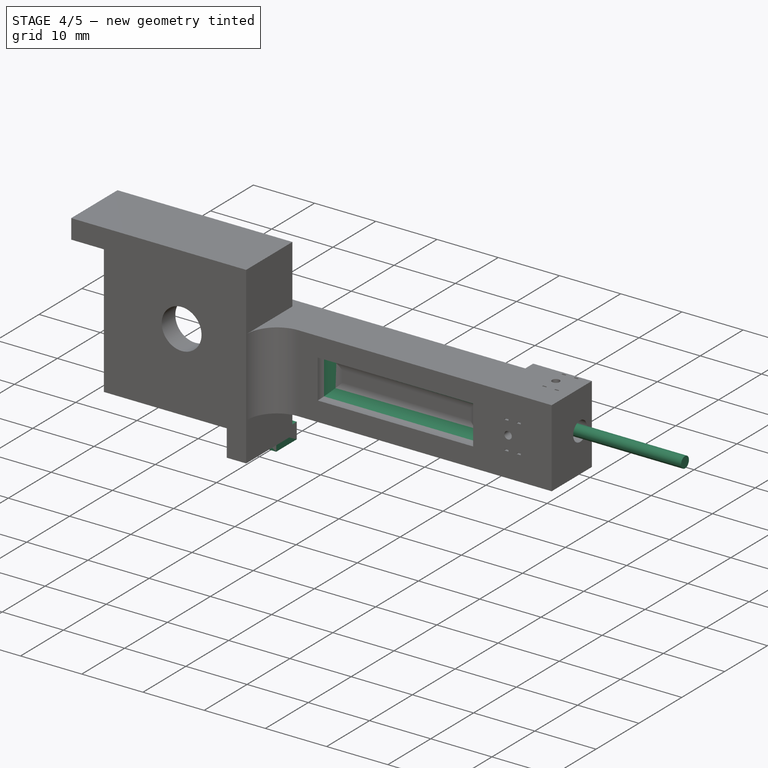
[diagram: stage 4 of 5 — iso view after this stage's code; geometry added in this stage tinted green]
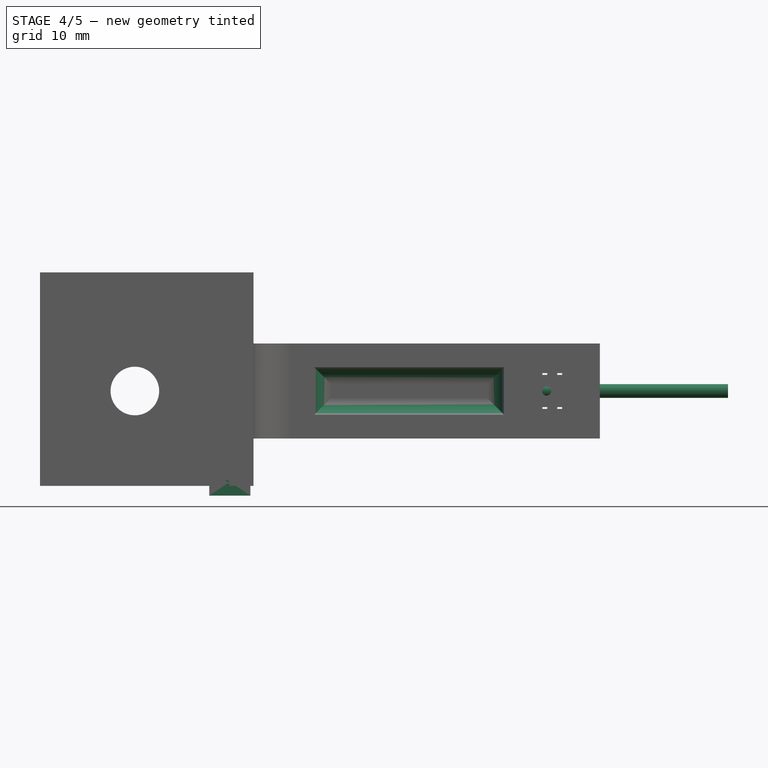
[diagram: stage 4 of 5 — front view after this stage's code; geometry added in this stage tinted green]
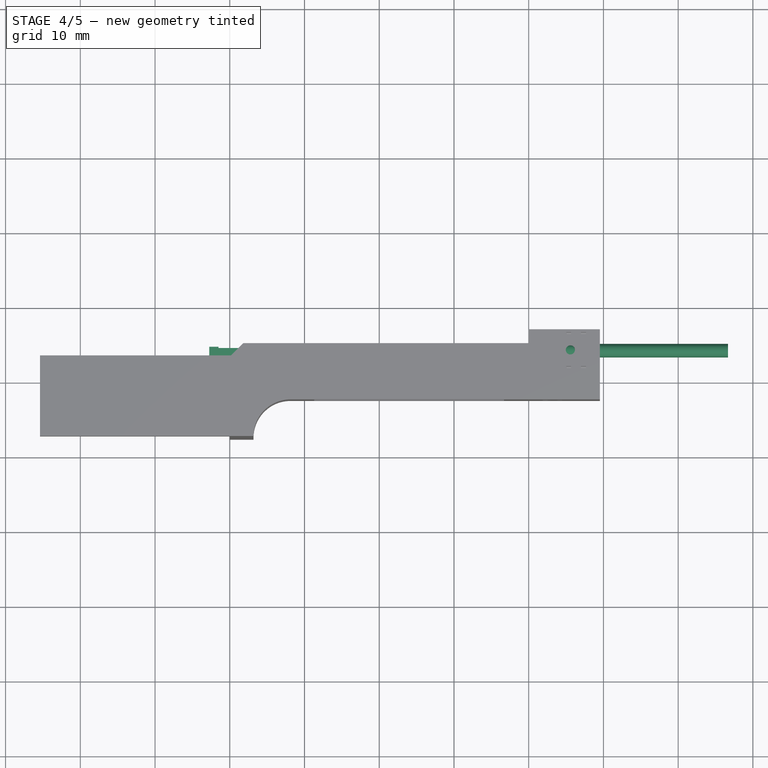
[diagram: stage 4 of 5 — top view after this stage's code; geometry added in this stage tinted green]
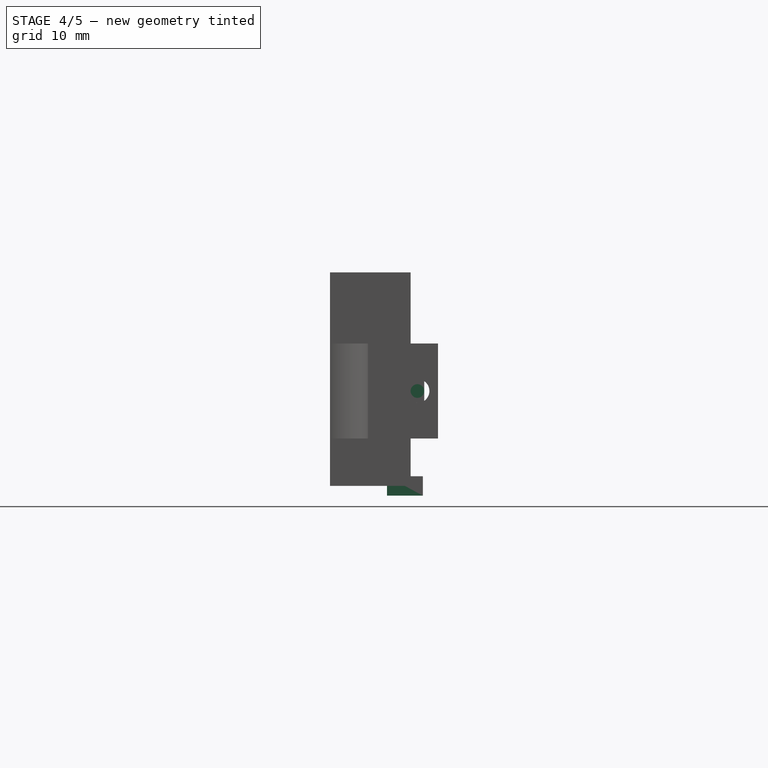
[diagram: stage 4 of 5 — right view after this stage's code; geometry added in this stage tinted green]
FEATURE [Sketcher::SketchObject] Sketch007  label="Main profile"
  MapMode = 5
  Support = -> [XY_Plane001]
  expr: Constraints[18] = 4.8mm
  expr: Constraints[17] = 3mm
  expr: Constraints[16] = 5.5mm
  expr: Constraints[15] = 3mm
  sketch-geometry (8):
    g0: LineSegment StartX=-2.75 StartY=0 StartZ=0 EndX=2.75 EndY=0 EndZ=0
    g1: LineSegment StartX=2.75 StartY=0 StartZ=0 EndX=2.75 EndY=4.8 EndZ=0
    g2: LineSegment StartX=2.75 StartY=4.8 StartZ=0 EndX=1.5 EndY=4.8 EndZ=0
    g3: LineSegment StartX=1.5 StartY=4.8 StartZ=0 EndX=1.5 EndY=1.8 EndZ=0
    g4: LineSegment StartX=1.5 StartY=1.8 StartZ=0 EndX=-1.5 EndY=1.8 EndZ=0
    g5: LineSegment StartX=-1.5 StartY=1.8 StartZ=0 EndX=-1.5 EndY=4.8 EndZ=0
    g6: LineSegment StartX=-1.5 StartY=4.8 StartZ=0 EndX=-2.75 EndY=4.8 EndZ=0
    g7: LineSegment StartX=-2.75 StartY=4.8 StartZ=0 EndX=-2.75 EndY=0 EndZ=0
  constraints (20):
    c: Coincident(g0,g1)
    c: Coincident(g1,g2)
    c: Coincident(g2,g3)
    c: Coincident(g3,g4)
    c: Coincident(g4,g5)
    c: Coincident(g5,g6)
    c: Coincident(g6,g7)
    c: Coincident(g0,g7)
    c: Horizontal(g6)
    c: Vertical(g7)
    c: Vertical(g5)
    c: Symmetric(g5,g2,g-2)
    c: Symmetric(g4,g3,g-2)
    c: Symmetric(g0,g0,g-2)
    c: Symmetric(g6,g1,g-2)
    c: DistanceX(g5,g2) = 3
    c: DistanceX(g6,g1) = 5.5
    c: DistanceY(g4,g5) = 3
    c: DistanceY(g0,g6) = 4.8
    c: DistanceY(g0) = 0
FEATURE [PartDesign::Pad] Pad003
  Length = 2.6
  Length2 = 99.9998
  Midplane = true
  Profile = -> Sketch007
  Type = 0
  expr: Length = 2.6mm
FEATURE [Sketcher::SketchObject] Sketch008  label="Peg"
  MapMode = 5
  Placement = pos=(0,0,0) rot=(1,0,0;1.5708rad)
  Support = -> [Pad003]
  expr: Constraints[2] = 1mm / 2
  expr: Constraints[1] = 0.75mm
  sketch-geometry (1):
    g0: Circle CenterX=0 CenterY=0.75 CenterZ=0 NormalX=0 NormalY=0 NormalZ=1 AngleXU=0 Radius=0.5
  constraints (3):
    c: DistanceX(g0) = 0
    c: DistanceY(g-1,g0) = 0.75
    c: Radius(g0) = 0.5
FEATURE [PartDesign::Pad] Pad004
  BaseFeature = -> Pad003
  Length = 0.8
  Length2 = 99.9998
  Profile = -> Sketch008
  Type = 0
  expr: Length = 0.8mm
FEATURE [Sketcher::SketchObject] Sketch009  label="Light beam"
  MapMode = 5
  Placement = pos=(-1.5,0,0) rot=(0.57735,0.57735,0.57735;2.0944rad)
  Support = -> [Pad004]
  expr: Constraints[12] = 4.8mm - 0.75mm
  expr: Constraints[7] = 0.3mm
  sketch-geometry (5):
    g0: LineSegment StartX=3.44231 StartY=0.15 StartZ=0 EndX=4.65768 EndY=0.15 EndZ=0
    g1: LineSegment StartX=4.65768 StartY=0.15 StartZ=0 EndX=4.65768 EndY=-0.15 EndZ=0
    g2: LineSegment StartX=4.65768 StartY=-0.15 StartZ=0 EndX=3.44231 EndY=-0.15 EndZ=0
    g3: LineSegment StartX=3.44231 StartY=-0.15 StartZ=0 EndX=3.44231 EndY=0.15 EndZ=0
    g4: LineSegment [constr] StartX=4.05 StartY=0.15 StartZ=0 EndX=4.05 EndY=-0.15 EndZ=0
  constraints (13):
    c: Coincident(g0,g1)
    c: Coincident(g1,g2)
    c: Coincident(g2,g3)
    c: Coincident(g3,g0)
    c: Horizontal(g0)
    c: Horizontal(g2)
    c: Vertical(g3)
    c: Distance(g1) = 0.3
    c: Symmetric(g1,g0,g-1)
    c: PointOnObject(g4,g0)
    c: PointOnObject(g4,g2)
    c: Symmetric(g1,g2,g4)
    c: DistanceX(g4) = 4.05
FEATURE [PartDesign::Pad] Pad005
  BaseFeature = -> Pad004
  Length = 9.99998
  Length2 = 99.9998
  Profile = -> Sketch009
  Type = 2
FEATURE [PartDesign::Body] Body001  label="Photointerrupt"
  Group = -> [Sketch007,Pad003,Sketch008,Pad004,Sketch009,Pad005,Chamfer001,Chamfer002,Chamfer003,Chamfer004,Sketch010,Pad006]
  Origin = -> Origin001
  Tip = -> Pad006
FEATURE [Sketcher::SketchObject] Sketch011  label="Spout"
  AttachmentOffset = pos=(0,0,13.335) rot=(0,0,1;0rad)
  MapMode = 5
  Placement = pos=(13.335,-3e-15,3e-15) rot=(0.57735,0.57735,0.57735;2.0944rad)
  Support = -> [YZ_Plane002]
  expr: AttachmentOffset.Base.z = 1.5" - 0.975"
  expr: Constraints[0] = 0.07199999999999999" / 2
  sketch-geometry (1):
    g0: Circle CenterX=4.07924 CenterY=12.7 CenterZ=0 NormalX=0 NormalY=0 NormalZ=1 AngleXU=0 Radius=0.9144
  constraints (3):
    c: Radius(g0) = 0.9144
    c: DistanceY(g0) = 12.7
    c: DistanceX(g0) = 4.07924
FEATURE [PartDesign::Pad] Pad007
  Length = 53.34
  Length2 = 99.9998
  Placement = pos=(0,0,0) rot=(0.57735,0.57735,0.57735;2.0944rad)
  Profile = -> Sketch011
  Type = 0
FEATURE [PartDesign::Fillet] Fillet001
  Base = -> Pocket008 [Face68]
  BaseFeature = -> Pocket008
  Radius = 2.286
FEATURE [PartDesign::Body] Body  label="Spout mount"
  Group = -> [Sketch,Pad,Sketch001,Pad001,Sketch002,Sketch003,Sketch004,Pocket,Pocket001,Chamfer,Pocket002,Sketch006,Pad002,Fillet,Sketch012,Sketch013,Pad008,Pocket003,Sketch014,Pocket004,Sketch015,Pocket005,Sketch016,Pocket006,Sketch017,Pocket007,Sketch018,Sketch019,SubtractiveLoft,Sketch020,Pocket008,Fillet001]
  Origin = -> Origin
  Tip = -> Fillet001
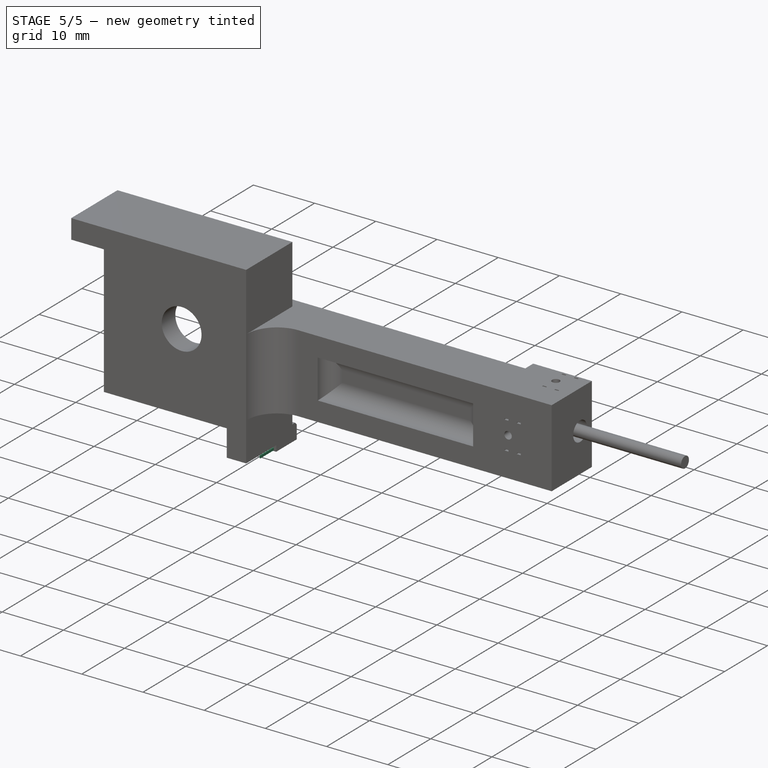
[diagram: stage 5 of 5 — iso view after this stage's code; geometry added in this stage tinted green]
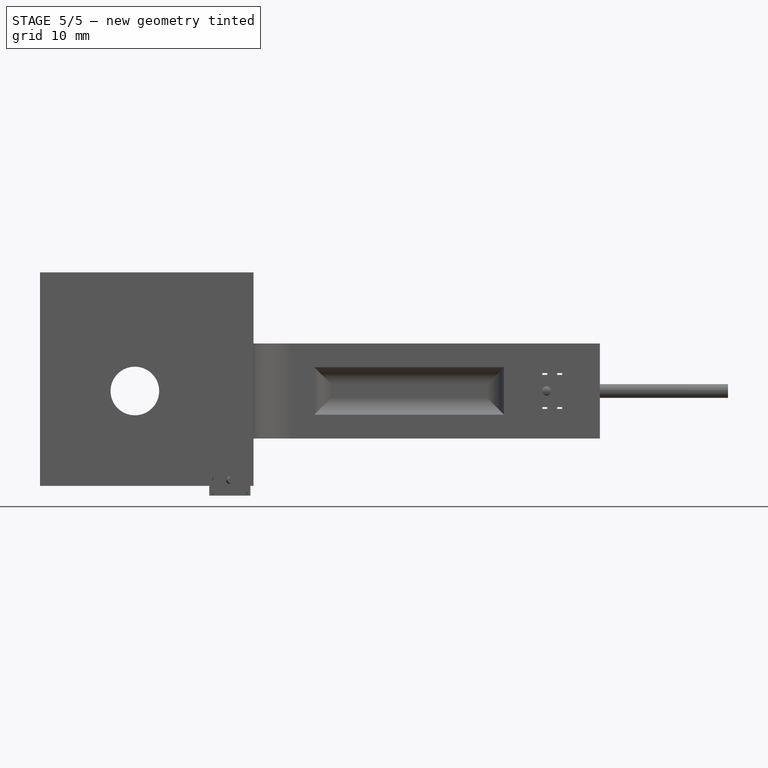
[diagram: stage 5 of 5 — front view after this stage's code; geometry added in this stage tinted green]
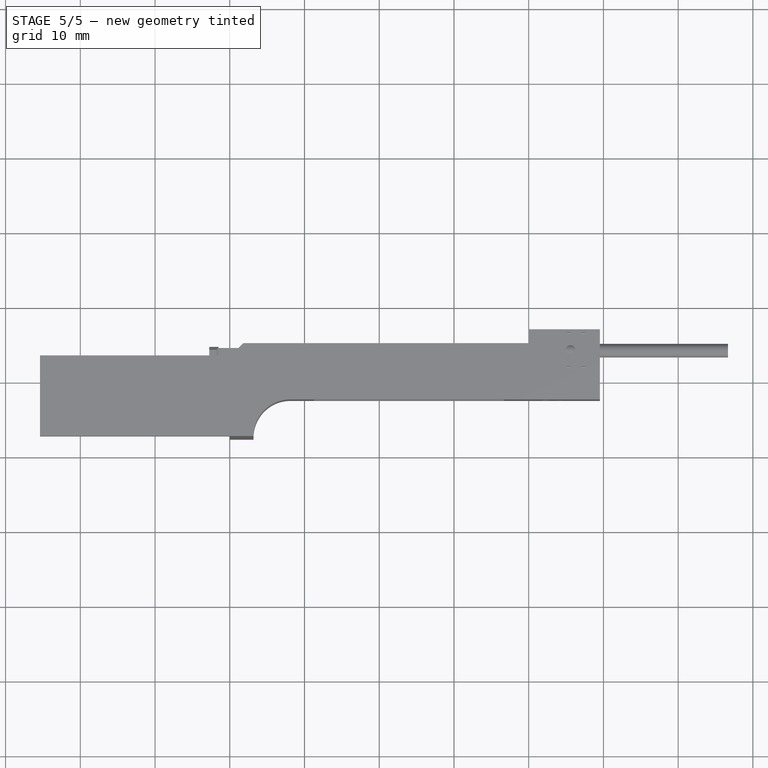
[diagram: stage 5 of 5 — top view after this stage's code; geometry added in this stage tinted green]
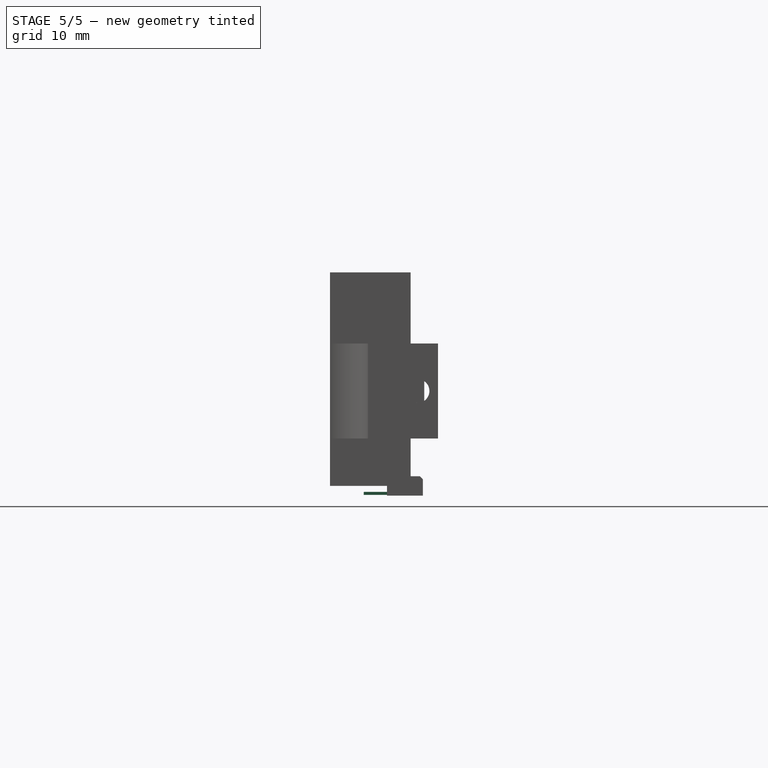
[diagram: stage 5 of 5 — right view after this stage's code; geometry added in this stage tinted green]
FEATURE [PartDesign::Chamfer] Chamfer001
  Base = -> Pad005 [Edge31,Edge26]
  BaseFeature = -> Pad005
  Size = 0.3
  expr: Size = 0.3mm
FEATURE [PartDesign::Chamfer] Chamfer002
  Base = -> Chamfer001 [Edge32,Edge8,Edge13,Edge1]
  BaseFeature = -> Chamfer001
  Size = 0.3
  expr: Size = 0.3mm
FEATURE [PartDesign::Chamfer] Chamfer003
  Base = -> Chamfer002 [Edge52]
  BaseFeature = -> Chamfer002
  Size = 0.2
  expr: Size = 0.2mm
FEATURE [PartDesign::Chamfer] Chamfer004
  Base = -> Chamfer003 [Edge23,Edge29]
  BaseFeature = -> Chamfer003
  Size = 0.4
  expr: Size = 0.4mm
FEATURE [Sketcher::SketchObject] Sketch010  label="Leads"
  MapMode = 5
  Placement = pos=(0,0,0) rot=(1,0,0;1.5708rad)
  Support = -> [Chamfer004]
  expr: Constraints[53] = 4.55mm
  expr: Constraints[46] = 0.15mm
  expr: Constraints[45] = 2mm
  expr: Constraints[38] = 0.4mm
  sketch-geometry (20):
    g0: LineSegment StartX=-2.35 StartY=1.2 StartZ=0 EndX=-2.2 EndY=1.2 EndZ=0
    g1: LineSegment StartX=-2.2 StartY=1.2 StartZ=0 EndX=-2.2 EndY=0.8 EndZ=0
    g2: LineSegment StartX=-2.2 StartY=0.8 StartZ=0 EndX=-2.35 EndY=0.8 EndZ=0
    g3: LineSegment StartX=-2.35 StartY=0.8 StartZ=0 EndX=-2.35 EndY=1.2 EndZ=0
    g4: LineSegment StartX=-2.35 StartY=-0.8 StartZ=0 EndX=-2.2 EndY=-0.8 EndZ=0
    g5: LineSegment StartX=-2.2 StartY=-0.8 StartZ=0 EndX=-2.2 EndY=-1.2 EndZ=0
    g6: LineSegment StartX=-2.2 StartY=-1.2 StartZ=0 EndX=-2.35 EndY=-1.2 EndZ=0
    g7: LineSegment StartX=-2.35 StartY=-1.2 StartZ=0 EndX=-2.35 EndY=-0.8 EndZ=0
    g8: LineSegment StartX=2.2 StartY=1.2 StartZ=0 EndX=2.35 EndY=1.2 EndZ=0
    g9: LineSegment StartX=2.35 StartY=1.2 StartZ=0 EndX=2.35 EndY=0.8 EndZ=0
    g10: LineSegment StartX=2.35 StartY=0.8 StartZ=0 EndX=2.2 EndY=0.8 EndZ=0
    g11: LineSegment StartX=2.2 StartY=0.8 StartZ=0 EndX=2.2 EndY=1.2 EndZ=0
    g12: LineSegment StartX=2.2 StartY=-0.8 StartZ=0 EndX=2.35 EndY=-0.8 EndZ=0
    g13: LineSegment StartX=2.35 StartY=-0.8 StartZ=0 EndX=2.35 EndY=-1.2 EndZ=0
    g14: LineSegment StartX=2.35 StartY=-1.2 StartZ=0 EndX=2.2 EndY=-1.2 EndZ=0
    g15: LineSegment StartX=2.2 StartY=-1.2 StartZ=0 EndX=2.2 EndY=-0.8 EndZ=0
    g16: LineSegment [constr] StartX=-2.35 StartY=1 StartZ=0 EndX=2.35 EndY=1 EndZ=0
    g17: LineSegment [constr] StartX=-2.35 StartY=-1 StartZ=0 EndX=2.35 EndY=-1 EndZ=0
    g18: LineSegment [constr] StartX=-2.275 StartY=1.2 StartZ=0 EndX=-2.275 EndY=-1.2 EndZ=0
    g19: LineSegment [constr] StartX=2.275 StartY=-1.2 StartZ=0 EndX=2.275 EndY=1.2 EndZ=0
  constraints (54):
    c: Coincident(g0,g1)
    c: Coincident(g1,g2)
    c: Coincident(g2,g3)
    c: Coincident(g3,g0)
    c: Horizontal(g0)
    c: Horizontal(g2)
    c: Vertical(g1)
    c: Vertical(g3)
    c: Coincident(g4,g5)
    c: Coincident(g5,g6)
    c: Coincident(g6,g7)
    c: Coincident(g7,g4)
    c: Horizontal(g4)
    c: Horizontal(g6)
    c: Vertical(g5)
    c: Vertical(g7)
    c: Coincident(g8,g9)
    c: Coincident(g9,g10)
    c: Coincident(g10,g11)
    c: Coincident(g11,g8)
    c: Horizontal(g8)
    c: Horizontal(g10)
    c: Vertical(g9)
    c: Vertical(g11)
    c: Coincident(g12,g13)
    c: Coincident(g13,g14)
    c: Coincident(g14,g15)
    c: Coincident(g15,g12)
    c: Horizontal(g12)
    c: Horizontal(g14)
    c: Vertical(g13)
    c: Vertical(g15)
    c: Symmetric(g5,g14,g-2)
    c: Symmetric(g12,g4,g-2)
    c: Symmetric(g1,g10,g-2)
    c: Symmetric(g0,g8,g-2)
    c: Symmetric(g1,g4,g-1)
    c: Symmetric(g0,g6,g-1)
    c: DistanceY(g3,g3) = 0.4
    c: PointOnObject(g17,g13)
    c: PointOnObject(g16,g9)
    c: PointOnObject(g16,g3)
    c: PointOnObject(g17,g7)
    c: Symmetric(g4,g6,g17)
    c: Symmetric(g0,g2,g16)
    c: DistanceY(g17,g16) = 2
    c: DistanceX(g0,g0) = 0.15
    c: PointOnObject(g18,g0)
    c: PointOnObject(g18,g6)
    c: PointOnObject(g19,g14)
    c: PointOnObject(g19,g8)
    c: Symmetric(g8,g8,g19)
    c: Symmetric(g4,g4,g18)
    c: DistanceX(g18,g19) = 4.55
FEATURE [PartDesign::Pad] Pad006
  BaseFeature = -> Chamfer004
  Length = 3.1
  Length2 = 99.9998
  Profile = -> Sketch010
  Type = 0
  expr: Length = 3.1mm
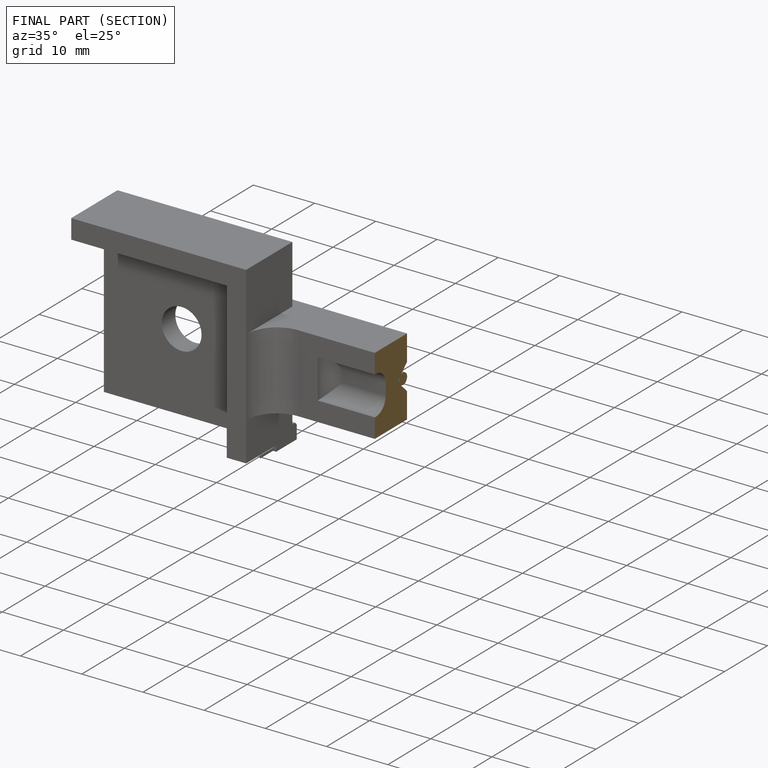
[diagram: finished part — half-section view (interior)]
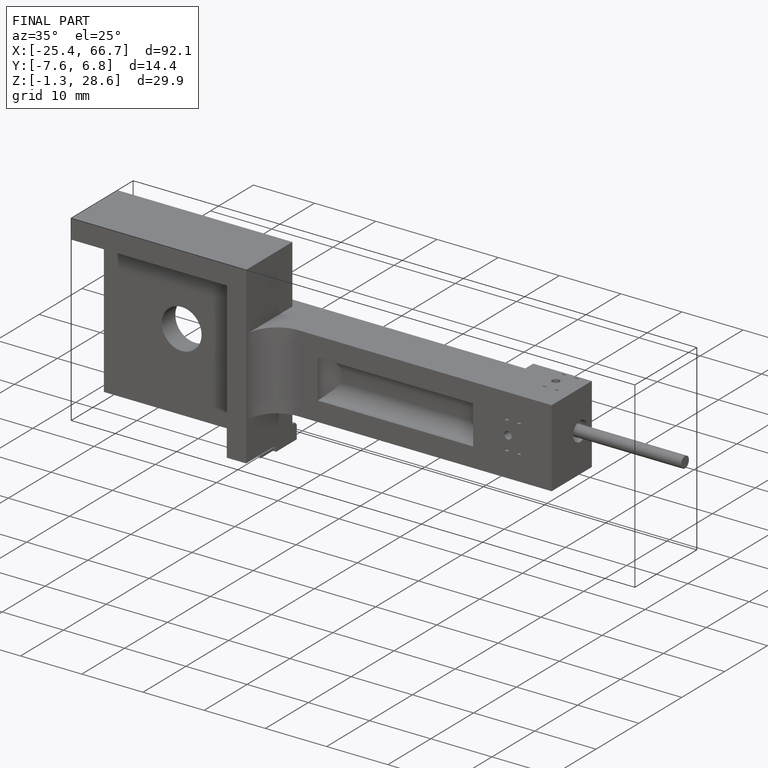
[diagram: finished part — iso view with bounding-box wireframe]
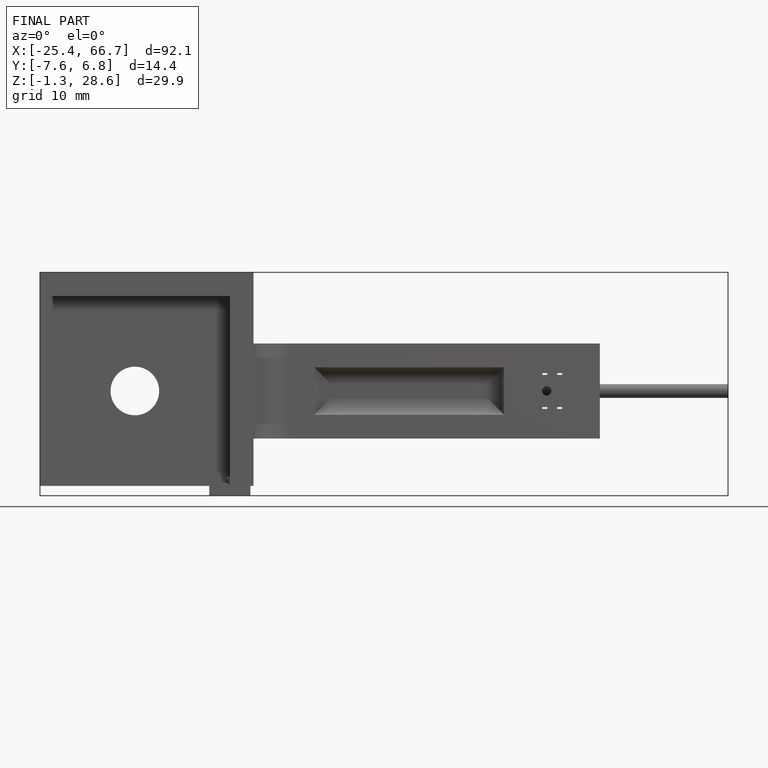
[diagram: finished part — front view with bounding-box wireframe]
